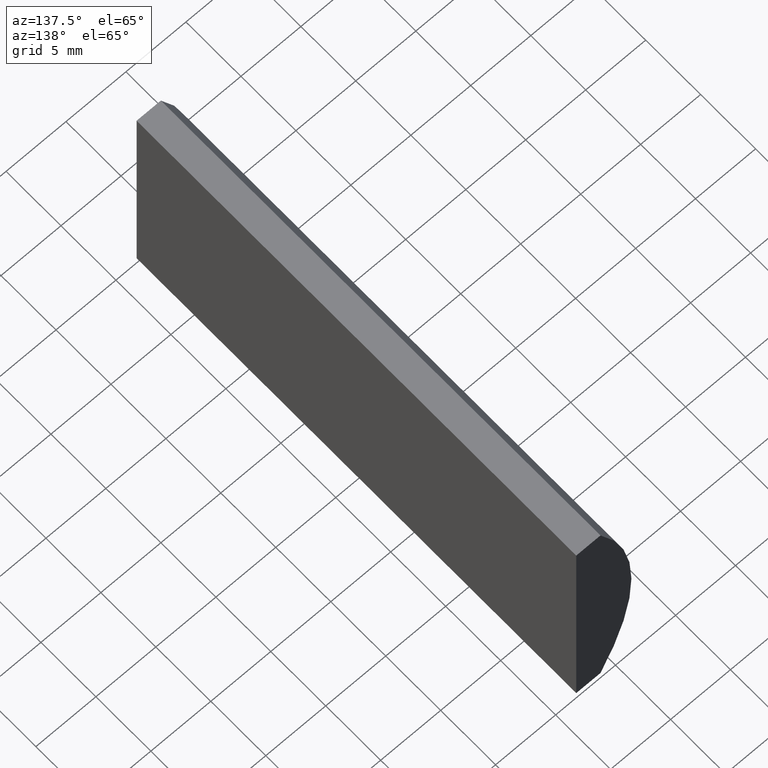
[diagram: clean part render]
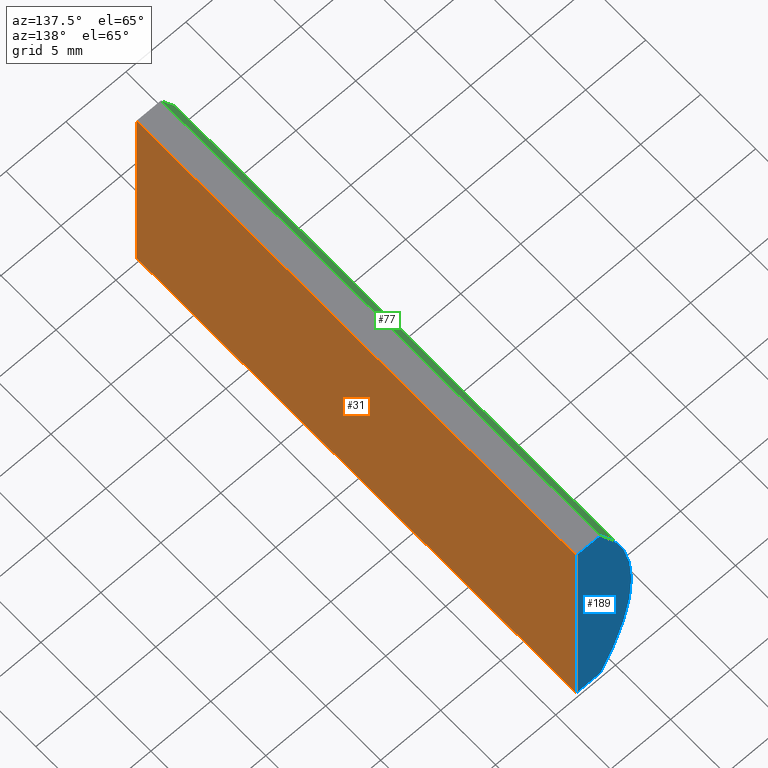
[diagram: same view with three faces highlighted in distinct colors, each labeled with its STEP entity id]
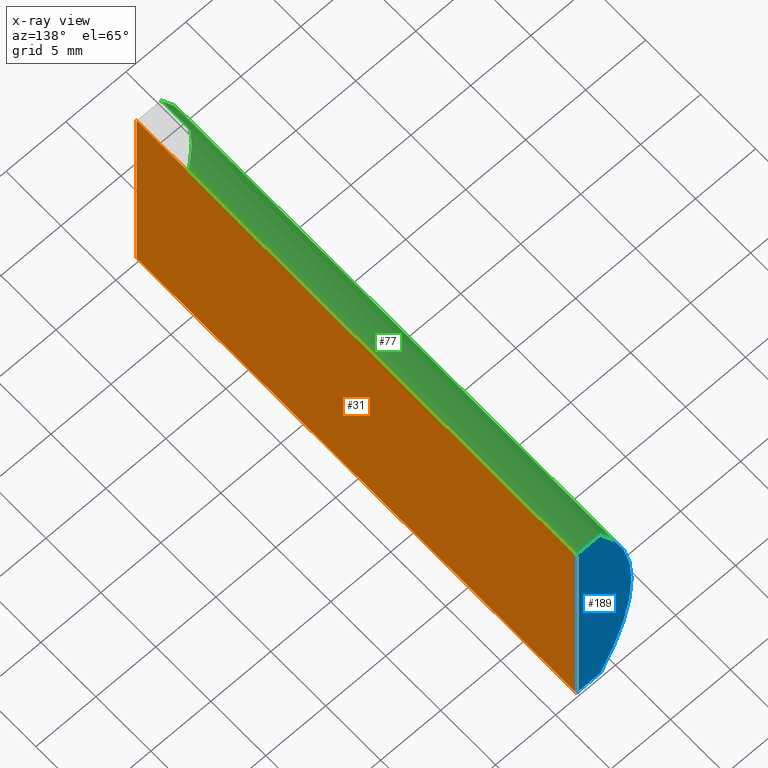
[diagram: x-ray of the same camera — body ghosted, the three highlighted faces saturated]
A machine part, auxiliary view with three faces highlighted in distinct colors.
The next image is the same camera in x-ray (body ghosted, the three faces saturated) — at least one of them is partly hidden behind the body in this view.
Their STEP definitions:

[orange] entity #31 — the highlighted planar face has unit normal (-1, 0, 0).
#5 = DIRECTION ( 'NONE',  ( -3.469446951953614700E-016, -0.0000000000000000000, -1.000000000000000000 ) ) ;
#6 = ORIENTED_EDGE ( 'NONE', *, *, #53, .T. ) ;
#14 = CARTESIAN_POINT ( 'NONE',  ( -11.72479566514873800, 0.0000000000000000000, -9.999999999999996400 ) ) ;
#15 = VERTEX_POINT ( 'NONE', #150 ) ;
#18 = CARTESIAN_POINT ( 'NONE',  ( -11.72479566514873100, 40.00000000000000000, 10.00000000000000000 ) ) ;
#30 = VERTEX_POINT ( 'NONE', #156 ) ;
#31 = ADVANCED_FACE ( 'NONE', ( #47 ), #179, .F. ) ;
#39 = LINE ( 'NONE', #188, #109 ) ;
#40 = VECTOR ( 'NONE', #5, 1000.000000000000000 ) ;
#45 = ORIENTED_EDGE ( 'NONE', *, *, #79, .F. ) ;
#47 = FACE_OUTER_BOUND ( 'NONE', #88, .T. ) ;
#52 = VECTOR ( 'NONE', #92, 1000.000000000000000 ) ;
#53 = EDGE_CURVE ( 'NONE', #30, #117, #143, .T. ) ;
#57 = DIRECTION ( 'NONE',  ( 3.469446951953615200E-016, 0.0000000000000000000, 1.000000000000000000 ) ) ;
#68 = LINE ( 'NONE', #98, #40 ) ;
#71 = LINE ( 'NONE', #124, #52 ) ;
#79 = EDGE_CURVE ( 'NONE', #30, #15, #68, .T. ) ;
#85 = EDGE_CURVE ( 'NONE', #117, #105, #71, .T. ) ;
#88 = EDGE_LOOP ( 'NONE', ( #100, #113, #45, #6 ) ) ;
#92 = DIRECTION ( 'NONE',  ( -3.469446951953614700E-016, -0.0000000000000000000, -1.000000000000000000 ) ) ;
#95 = DIRECTION ( 'NONE',  ( -0.0000000000000000000, -1.000000000000000000, -0.0000000000000000000 ) ) ;
#98 = CARTESIAN_POINT ( 'NONE',  ( -11.72479566514873800, 40.00000000000000000, -9.999999999999996400 ) ) ;
#100 = ORIENTED_EDGE ( 'NONE', *, *, #85, .T. ) ;
#105 = VERTEX_POINT ( 'NONE', #14 ) ;
#109 = VECTOR ( 'NONE', #95, 1000.000000000000000 ) ;
#113 = ORIENTED_EDGE ( 'NONE', *, *, #119, .F. ) ;
#117 = VERTEX_POINT ( 'NONE', #134 ) ;
#119 = EDGE_CURVE ( 'NONE', #15, #105, #39, .T. ) ;
#124 = CARTESIAN_POINT ( 'NONE',  ( -11.72479566514873800, 0.0000000000000000000, -9.999999999999996400 ) ) ;
#129 = CARTESIAN_POINT ( 'NONE',  ( -11.72479566514873800, 40.00000000000000000, -9.999999999999996400 ) ) ;
#134 = CARTESIAN_POINT ( 'NONE',  ( -11.72479566514873100, 0.0000000000000000000, 10.00000000000000000 ) ) ;
#143 = LINE ( 'NONE', #18, #147 ) ;
#147 = VECTOR ( 'NONE', #197, 1000.000000000000000 ) ;
#148 = DIRECTION ( 'NONE',  ( -1.000000000000000000, 0.0000000000000000000, 3.469446951953615200E-016 ) ) ;
#150 = CARTESIAN_POINT ( 'NONE',  ( -11.72479566514873800, 40.00000000000000000, -9.999999999999996400 ) ) ;
#156 = CARTESIAN_POINT ( 'NONE',  ( -11.72479566514873100, 40.00000000000000000, 10.00000000000000000 ) ) ;
#179 = PLANE ( 'NONE',  #182 ) ;
#182 = AXIS2_PLACEMENT_3D ( 'NONE', #129, #148, #57 ) ;
#188 = CARTESIAN_POINT ( 'NONE',  ( -11.72479566514873800, 40.00000000000000000, -9.999999999999996400 ) ) ;
#197 = DIRECTION ( 'NONE',  ( -0.0000000000000000000, -1.000000000000000000, -0.0000000000000000000 ) ) ;

[blue] entity #189 — the highlighted planar face has unit normal (0, 1, 0).
#1 = EDGE_CURVE ( 'NONE', #94, #80, #67, .T. ) ;
#5 = DIRECTION ( 'NONE',  ( -3.469446951953614700E-016, -0.0000000000000000000, -1.000000000000000000 ) ) ;
#9 = DIRECTION ( 'NONE',  ( 1.000000000000000000, 0.0000000000000000000, 0.0000000000000000000 ) ) ;
#10 = VECTOR ( 'NONE', #107, 1000.000000000000000 ) ;
#15 = VERTEX_POINT ( 'NONE', #150 ) ;
#22 = LINE ( 'NONE', #23, #131 ) ;
#23 = CARTESIAN_POINT ( 'NONE',  ( -13.74624312108440400, 40.00000000000000000, 10.00000000000000000 ) ) ;
#26 = ORIENTED_EDGE ( 'NONE', *, *, #41, .T. ) ;
#28 = DIRECTION ( 'NONE',  ( 0.0000000000000000000, -0.0000000000000000000, 1.000000000000000000 ) ) ;
#30 = VERTEX_POINT ( 'NONE', #156 ) ;
#35 = DIRECTION ( 'NONE',  ( 0.0000000000000000000, 0.0000000000000000000, 1.000000000000000000 ) ) ;
#40 = VECTOR ( 'NONE', #5, 1000.000000000000000 ) ;
#41 = EDGE_CURVE ( 'NONE', #15, #94, #187, .T. ) ;
#43 = AXIS2_PLACEMENT_3D ( 'NONE', #102, #75, #35 ) ;
#46 = EDGE_CURVE ( 'NONE', #80, #30, #22, .T. ) ;
#58 = CARTESIAN_POINT ( 'NONE',  ( -13.74624312108440400, 40.00000000000000000, 10.00000000000000000 ) ) ;
#59 = PLANE ( 'NONE',  #62 ) ;
#61 = FACE_OUTER_BOUND ( 'NONE', #76, .T. ) ;
#62 = AXIS2_PLACEMENT_3D ( 'NONE', #82, #136, #28 ) ;
#67 = CIRCLE ( 'NONE', #43, 20.68000000000000000 ) ;
#68 = LINE ( 'NONE', #98, #40 ) ;
#75 = DIRECTION ( 'NONE',  ( 0.0000000000000000000, 1.000000000000000000, 0.0000000000000000000 ) ) ;
#76 = EDGE_LOOP ( 'NONE', ( #168, #106, #190, #26 ) ) ;
#79 = EDGE_CURVE ( 'NONE', #30, #15, #68, .T. ) ;
#80 = VERTEX_POINT ( 'NONE', #58 ) ;
#82 = CARTESIAN_POINT ( 'NONE',  ( 4.355204334851265500, 40.00000000000000000, 4.286263797015675000E-017 ) ) ;
#94 = VERTEX_POINT ( 'NONE', #114 ) ;
#98 = CARTESIAN_POINT ( 'NONE',  ( -11.72479566514873800, 40.00000000000000000, -9.999999999999996400 ) ) ;
#102 = CARTESIAN_POINT ( 'NONE',  ( 4.355204334851265500, 40.00000000000000000, 4.286263797015675000E-017 ) ) ;
#106 = ORIENTED_EDGE ( 'NONE', *, *, #46, .T. ) ;
#107 = DIRECTION ( 'NONE',  ( -1.000000000000000000, -0.0000000000000000000, -1.716318147061464100E-015 ) ) ;
#114 = CARTESIAN_POINT ( 'NONE',  ( -13.74624312108440400, 40.00000000000000000, -10.00000000000000000 ) ) ;
#131 = VECTOR ( 'NONE', #9, 1000.000000000000000 ) ;
#136 = DIRECTION ( 'NONE',  ( 0.0000000000000000000, 1.000000000000000000, 0.0000000000000000000 ) ) ;
#150 = CARTESIAN_POINT ( 'NONE',  ( -11.72479566514873800, 40.00000000000000000, -9.999999999999996400 ) ) ;
#152 = CARTESIAN_POINT ( 'NONE',  ( -13.74624312108440400, 40.00000000000000000, -10.00000000000000000 ) ) ;
#156 = CARTESIAN_POINT ( 'NONE',  ( -11.72479566514873100, 40.00000000000000000, 10.00000000000000000 ) ) ;
#168 = ORIENTED_EDGE ( 'NONE', *, *, #1, .T. ) ;
#187 = LINE ( 'NONE', #152, #10 ) ;
#189 = ADVANCED_FACE ( 'NONE', ( #61 ), #59, .T. ) ;
#190 = ORIENTED_EDGE ( 'NONE', *, *, #79, .T. ) ;

[green] entity #77 — the highlighted cylindrical surface (partial cylindrical patch) has radius 20.68 mm, axis along (-0, -1, -0).
#1 = EDGE_CURVE ( 'NONE', #94, #80, #67, .T. ) ;
#12 = AXIS2_PLACEMENT_3D ( 'NONE', #81, #200, #201 ) ;
#19 = EDGE_CURVE ( 'NONE', #135, #101, #193, .T. ) ;
#21 = FACE_OUTER_BOUND ( 'NONE', #204, .T. ) ;
#32 = CARTESIAN_POINT ( 'NONE',  ( -13.74624312108440400, 40.00000000000000000, 10.00000000000000000 ) ) ;
#34 = ORIENTED_EDGE ( 'NONE', *, *, #19, .T. ) ;
#35 = DIRECTION ( 'NONE',  ( 0.0000000000000000000, 0.0000000000000000000, 1.000000000000000000 ) ) ;
#43 = AXIS2_PLACEMENT_3D ( 'NONE', #102, #75, #35 ) ;
#48 = EDGE_CURVE ( 'NONE', #80, #101, #69, .T. ) ;
#58 = CARTESIAN_POINT ( 'NONE',  ( -13.74624312108440400, 40.00000000000000000, 10.00000000000000000 ) ) ;
#67 = CIRCLE ( 'NONE', #43, 20.68000000000000000 ) ;
#69 = LINE ( 'NONE', #32, #202 ) ;
#73 = CARTESIAN_POINT ( 'NONE',  ( -13.74624312108440400, 0.0000000000000000000, -10.00000000000000000 ) ) ;
#75 = DIRECTION ( 'NONE',  ( 0.0000000000000000000, 1.000000000000000000, 0.0000000000000000000 ) ) ;
#77 = ADVANCED_FACE ( 'NONE', ( #21 ), #140, .T. ) ;
#80 = VERTEX_POINT ( 'NONE', #58 ) ;
#81 = CARTESIAN_POINT ( 'NONE',  ( 4.355204334851265500, 0.0000000000000000000, 4.286263797015675000E-017 ) ) ;
#87 = VECTOR ( 'NONE', #176, 1000.000000000000000 ) ;
#90 = ORIENTED_EDGE ( 'NONE', *, *, #48, .F. ) ;
#94 = VERTEX_POINT ( 'NONE', #114 ) ;
#96 = CARTESIAN_POINT ( 'NONE',  ( 4.355204334851265500, 40.00000000000000000, 4.286263797015675000E-017 ) ) ;
#101 = VERTEX_POINT ( 'NONE', #173 ) ;
#102 = CARTESIAN_POINT ( 'NONE',  ( 4.355204334851265500, 40.00000000000000000, 4.286263797015675000E-017 ) ) ;
#111 = ORIENTED_EDGE ( 'NONE', *, *, #1, .F. ) ;
#114 = CARTESIAN_POINT ( 'NONE',  ( -13.74624312108440400, 40.00000000000000000, -10.00000000000000000 ) ) ;
#120 = DIRECTION ( 'NONE',  ( 0.0000000000000000000, 0.0000000000000000000, -1.000000000000000000 ) ) ;
#121 = ORIENTED_EDGE ( 'NONE', *, *, #159, .T. ) ;
#132 = DIRECTION ( 'NONE',  ( -0.0000000000000000000, -1.000000000000000000, -0.0000000000000000000 ) ) ;
#135 = VERTEX_POINT ( 'NONE', #73 ) ;
#137 = CARTESIAN_POINT ( 'NONE',  ( -13.74624312108440400, 40.00000000000000000, -10.00000000000000000 ) ) ;
#140 = CYLINDRICAL_SURFACE ( 'NONE', #160, 20.68000000000000000 ) ;
#157 = LINE ( 'NONE', #137, #87 ) ;
#159 = EDGE_CURVE ( 'NONE', #94, #135, #157, .T. ) ;
#160 = AXIS2_PLACEMENT_3D ( 'NONE', #96, #175, #120 ) ;
#173 = CARTESIAN_POINT ( 'NONE',  ( -13.74624312108440400, 0.0000000000000000000, 10.00000000000000000 ) ) ;
#175 = DIRECTION ( 'NONE',  ( -0.0000000000000000000, -1.000000000000000000, -0.0000000000000000000 ) ) ;
#176 = DIRECTION ( 'NONE',  ( -0.0000000000000000000, -1.000000000000000000, -0.0000000000000000000 ) ) ;
#193 = CIRCLE ( 'NONE', #12, 20.68000000000000000 ) ;
#200 = DIRECTION ( 'NONE',  ( 0.0000000000000000000, 1.000000000000000000, 0.0000000000000000000 ) ) ;
#201 = DIRECTION ( 'NONE',  ( 0.0000000000000000000, 0.0000000000000000000, 1.000000000000000000 ) ) ;
#202 = VECTOR ( 'NONE', #132, 1000.000000000000000 ) ;
#204 = EDGE_LOOP ( 'NONE', ( #34, #90, #111, #121 ) ) ;